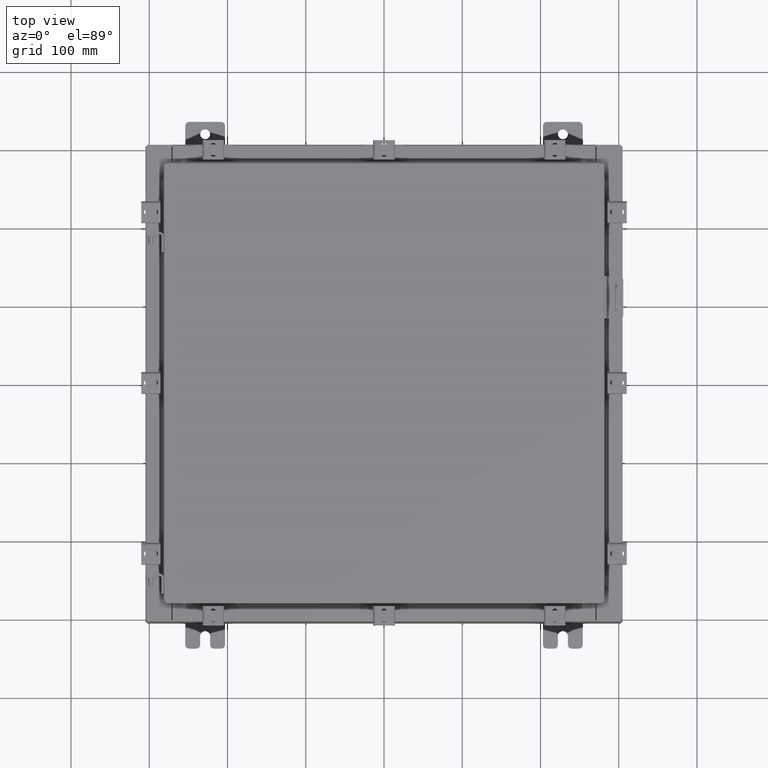
[diagram: clean part render]
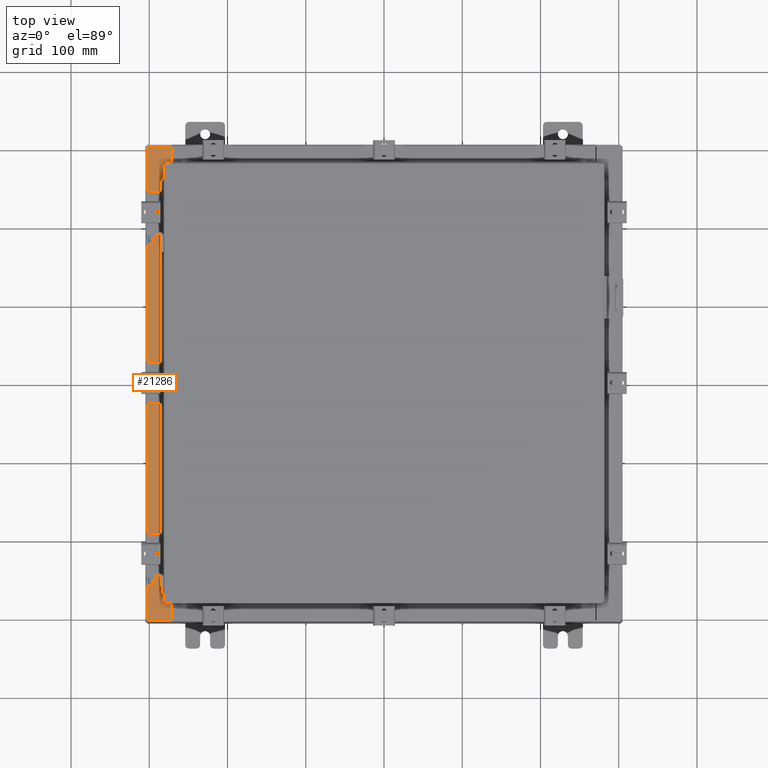
[diagram: same view with one face highlighted and labeled with its STEP entity id]
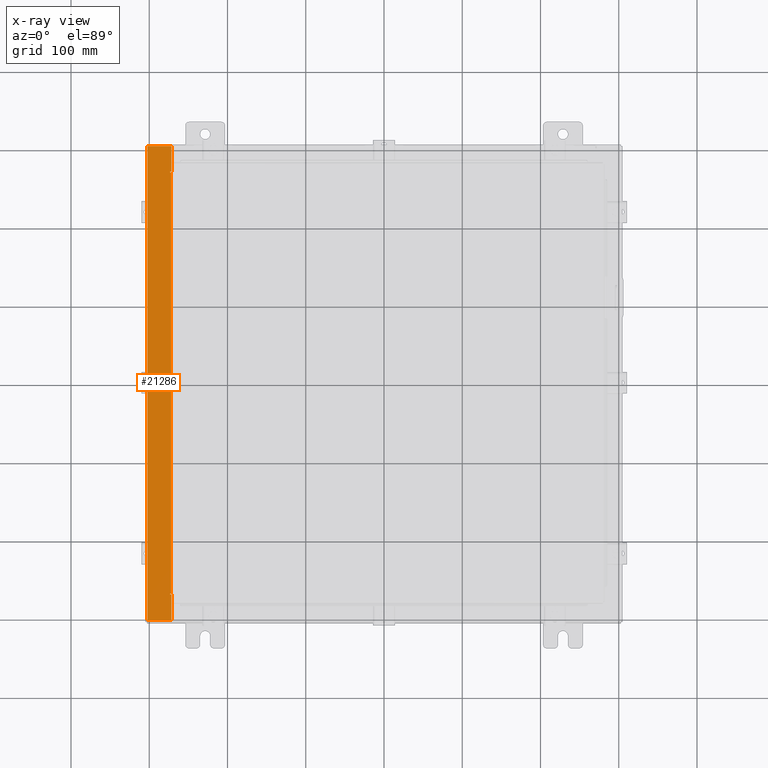
[diagram: x-ray of the same camera — body ghosted, the highlighted face saturated]
A machine part, top view. The second image highlights one B-rep face of the part: STEP entity #21286.
The next image is the same camera in x-ray: the body ghosted, the highlighted face saturated — about 0% of this face is hidden behind the body in this view.
In plain terms, the highlighted planar face has unit normal (0, 0, -1).
Its self-contained STEP definition (entity closure, byte-faithful):
#204 = ORIENTED_EDGE ( 'NONE', *, *, #18328, .F. ) ;
#241 = CARTESIAN_POINT ( 'NONE',  ( -10.75005000000002300, -10.63109999999999600, 5.925300000000008000 ) ) ;
#449 = VERTEX_POINT ( 'NONE', #14115 ) ;
#586 = LINE ( 'NONE', #5543, #5276 ) ;
#938 = CARTESIAN_POINT ( 'NONE',  ( -10.75005000000002300, 10.61242499999999800, 5.925300000000008000 ) ) ;
#1025 = EDGE_CURVE ( 'NONE', #449, #14493, #6634, .T. ) ;
#1284 = CARTESIAN_POINT ( 'NONE',  ( -10.69970000000002300, 10.63109999999999600, 5.925300000000008000 ) ) ;
#1315 = DIRECTION ( 'NONE',  ( 1.000000000000000000, 0.0000000000000000000, 0.0000000000000000000 ) ) ;
#1596 = ORIENTED_EDGE ( 'NONE', *, *, #2313, .T. ) ;
#1977 = EDGE_CURVE ( 'NONE', #6050, #22054, #5266, .T. ) ;
#2008 = AXIS2_PLACEMENT_3D ( 'NONE', #22132, #8294, #20490 ) ;
#2313 = EDGE_CURVE ( 'NONE', #13649, #8476, #5878, .T. ) ;
#2646 = CARTESIAN_POINT ( 'NONE',  ( -10.75005000000002300, 10.63109999999999600, 5.925300000000008000 ) ) ;
#2727 = DIRECTION ( 'NONE',  ( 1.000000000000000000, 0.0000000000000000000, 0.0000000000000000000 ) ) ;
#4092 = DIRECTION ( 'NONE',  ( -1.000000000000000000, 0.0000000000000000000, 0.0000000000000000000 ) ) ;
#4117 = ORIENTED_EDGE ( 'NONE', *, *, #16048, .F. ) ;
#4653 = ORIENTED_EDGE ( 'NONE', *, *, #18785, .T. ) ;
#4690 = VECTOR ( 'NONE', #20341, 39.37007874015748100 ) ;
#4700 = VECTOR ( 'NONE', #4092, 39.37007874015748100 ) ;
#4867 = ORIENTED_EDGE ( 'NONE', *, *, #15873, .F. ) ;
#5076 = ORIENTED_EDGE ( 'NONE', *, *, #1977, .T. ) ;
#5138 = ORIENTED_EDGE ( 'NONE', *, *, #10125, .T. ) ;
#5222 = CARTESIAN_POINT ( 'NONE',  ( -10.71270000000002300, 10.59374999999999800, 5.925300000000008000 ) ) ;
#5266 = LINE ( 'NONE', #22229, #4690 ) ;
#5276 = VECTOR ( 'NONE', #10785, 39.37007874015748100 ) ;
#5396 = VECTOR ( 'NONE', #13153, 39.37007874015748100 ) ;
#5542 = CARTESIAN_POINT ( 'NONE',  ( -11.91230000000002500, -11.92530000000000000, 5.925299999999999100 ) ) ;
#5543 = CARTESIAN_POINT ( 'NONE',  ( -10.75005000000002300, 10.59374999999999800, 5.925300000000008000 ) ) ;
#5825 = EDGE_CURVE ( 'NONE', #22288, #449, #586, .T. ) ;
#5878 = LINE ( 'NONE', #10395, #11116 ) ;
#5978 = VECTOR ( 'NONE', #19745, 39.37007874015748100 ) ;
#6050 = VERTEX_POINT ( 'NONE', #21736 ) ;
#6067 = VECTOR ( 'NONE', #22222, 39.37007874015748100 ) ;
#6499 = VERTEX_POINT ( 'NONE', #241 ) ;
#6634 = LINE ( 'NONE', #5222, #6067 ) ;
#6645 = CARTESIAN_POINT ( 'NONE',  ( -11.91230000000002300, 11.92529999999999800, 5.925299999999999100 ) ) ;
#6725 = VECTOR ( 'NONE', #15352, 39.37007874015748100 ) ;
#7272 = LINE ( 'NONE', #6645, #6725 ) ;
#7639 = ORIENTED_EDGE ( 'NONE', *, *, #5825, .F. ) ;
#7692 = CARTESIAN_POINT ( 'NONE',  ( -10.69970000000002300, -3.338884789195309000E-030, 5.925300000000008000 ) ) ;
#7861 = ORIENTED_EDGE ( 'NONE', *, *, #19582, .F. ) ;
#7959 = ORIENTED_EDGE ( 'NONE', *, *, #9702, .F. ) ;
#8117 = AXIS2_PLACEMENT_3D ( 'NONE', #938, #13189, #2727 ) ;
#8268 = CARTESIAN_POINT ( 'NONE',  ( -10.75005000000002300, -10.63109999999999600, 5.925300000000008000 ) ) ;
#8294 = DIRECTION ( 'NONE',  ( 7.132762385546384700E-015, 0.0000000000000000000, -1.000000000000000000 ) ) ;
#8476 = VERTEX_POINT ( 'NONE', #13658 ) ;
#9473 = DIRECTION ( 'NONE',  ( -3.120540565805877600E-031, 1.000000000000000000, -2.225807437035179500E-045 ) ) ;
#9483 = EDGE_CURVE ( 'NONE', #14493, #20748, #19289, .T. ) ;
#9631 = EDGE_LOOP ( 'NONE', ( #4867, #4653, #5076, #7959, #1596, #5138, #204, #4117, #15177, #13777, #7639, #7861 ) ) ;
#9702 = EDGE_CURVE ( 'NONE', #13649, #22054, #7272, .T. ) ;
#9734 = DIRECTION ( 'NONE',  ( -7.132762385546384700E-015, -0.0000000000000000000, 1.000000000000000000 ) ) ;
#10125 = EDGE_CURVE ( 'NONE', #8476, #19557, #13376, .T. ) ;
#10305 = FACE_OUTER_BOUND ( 'NONE', #9631, .T. ) ;
#10395 = CARTESIAN_POINT ( 'NONE',  ( -4.252457061909017700E-014, -11.92530000000000000, 5.925300000000084400 ) ) ;
#10487 = DIRECTION ( 'NONE',  ( 1.000000000000000000, -4.379057701015053300E-047, 7.132762385546384700E-015 ) ) ;
#10785 = DIRECTION ( 'NONE',  ( 1.000000000000000000, 0.0000000000000000000, 0.0000000000000000000 ) ) ;
#11037 = AXIS2_PLACEMENT_3D ( 'NONE', #20137, #9734, #21873 ) ;
#11116 = VECTOR ( 'NONE', #10487, 39.37007874015748100 ) ;
#11823 = CIRCLE ( 'NONE', #11037, 0.01867499999999949400 ) ;
#12099 = CARTESIAN_POINT ( 'NONE',  ( -10.71270000000002300, -10.59374999999999800, 5.925300000000008000 ) ) ;
#12764 = VERTEX_POINT ( 'NONE', #1284 ) ;
#12769 = CARTESIAN_POINT ( 'NONE',  ( -10.69970000000002300, -3.338884789195309000E-030, 5.925300000000008000 ) ) ;
#13073 = CARTESIAN_POINT ( 'NONE',  ( -10.71270000000002300, -10.59374999999999800, 5.925300000000008000 ) ) ;
#13153 = DIRECTION ( 'NONE',  ( -1.000000000000000000, 0.0000000000000000000, 0.0000000000000000000 ) ) ;
#13189 = DIRECTION ( 'NONE',  ( -7.132762385546384700E-015, -0.0000000000000000000, 1.000000000000000000 ) ) ;
#13376 = LINE ( 'NONE', #7692, #22045 ) ;
#13649 = VERTEX_POINT ( 'NONE', #5542 ) ;
#13658 = CARTESIAN_POINT ( 'NONE',  ( -10.69970000000002300, -11.92530000000000000, 5.925300000000008000 ) ) ;
#13777 = ORIENTED_EDGE ( 'NONE', *, *, #1025, .F. ) ;
#14115 = CARTESIAN_POINT ( 'NONE',  ( -10.71270000000002300, 10.59374999999999800, 5.925300000000008000 ) ) ;
#14130 = CARTESIAN_POINT ( 'NONE',  ( -10.75005000000002300, 10.59374999999999800, 5.925300000000008000 ) ) ;
#14493 = VERTEX_POINT ( 'NONE', #12099 ) ;
#14520 = CARTESIAN_POINT ( 'NONE',  ( -10.69970000000002300, 10.63109999999999600, 5.925300000000008000 ) ) ;
#15177 = ORIENTED_EDGE ( 'NONE', *, *, #9483, .F. ) ;
#15280 = LINE ( 'NONE', #12769, #5978 ) ;
#15352 = DIRECTION ( 'NONE',  ( 9.163200904511462000E-017, 1.000000000000000000, 6.535893474290396800E-031 ) ) ;
#15873 = EDGE_CURVE ( 'NONE', #12764, #17476, #18061, .T. ) ;
#16048 = EDGE_CURVE ( 'NONE', #20748, #6499, #11823, .T. ) ;
#16591 = CARTESIAN_POINT ( 'NONE',  ( -10.69970000000002300, -10.63109999999999800, 5.925300000000008000 ) ) ;
#16594 = CIRCLE ( 'NONE', #8117, 0.01867499999999949400 ) ;
#16974 = PLANE ( 'NONE',  #2008 ) ;
#17193 = VECTOR ( 'NONE', #1315, 39.37007874015748100 ) ;
#17471 = CARTESIAN_POINT ( 'NONE',  ( -10.75005000000002300, -10.59374999999999800, 5.925300000000008000 ) ) ;
#17476 = VERTEX_POINT ( 'NONE', #2646 ) ;
#18061 = LINE ( 'NONE', #14520, #4700 ) ;
#18328 = EDGE_CURVE ( 'NONE', #6499, #19557, #21801, .T. ) ;
#18785 = EDGE_CURVE ( 'NONE', #12764, #6050, #15280, .T. ) ;
#19289 = LINE ( 'NONE', #13073, #5396 ) ;
#19557 = VERTEX_POINT ( 'NONE', #16591 ) ;
#19582 = EDGE_CURVE ( 'NONE', #17476, #22288, #16594, .T. ) ;
#19745 = DIRECTION ( 'NONE',  ( -3.120540565805877600E-031, 1.000000000000000000, -2.225807437035179500E-045 ) ) ;
#20137 = CARTESIAN_POINT ( 'NONE',  ( -10.75005000000002300, -10.61242499999999800, 5.925300000000008000 ) ) ;
#20341 = DIRECTION ( 'NONE',  ( -1.000000000000000000, -4.084933421431495300E-032, -7.132762385546384700E-015 ) ) ;
#20490 = DIRECTION ( 'NONE',  ( -1.000000000000000000, 0.0000000000000000000, -7.132762385546384700E-015 ) ) ;
#20535 = CARTESIAN_POINT ( 'NONE',  ( -11.91230000000002500, 11.92529999999999800, 5.925299999999999100 ) ) ;
#20748 = VERTEX_POINT ( 'NONE', #17471 ) ;
#21286 = ADVANCED_FACE ( 'NONE', ( #10305 ), #16974, .F. ) ;
#21736 = CARTESIAN_POINT ( 'NONE',  ( -10.69970000000002300, 11.92529999999999800, 5.925300000000008000 ) ) ;
#21801 = LINE ( 'NONE', #8268, #17193 ) ;
#21873 = DIRECTION ( 'NONE',  ( 1.000000000000000000, 0.0000000000000000000, 0.0000000000000000000 ) ) ;
#22045 = VECTOR ( 'NONE', #9473, 39.37007874015748100 ) ;
#22054 = VERTEX_POINT ( 'NONE', #20535 ) ;
#22132 = CARTESIAN_POINT ( 'NONE',  ( -4.252457061909017700E-014, 0.0000000000000000000, 5.925300000000084400 ) ) ;
#22222 = DIRECTION ( 'NONE',  ( -0.0000000000000000000, -1.000000000000000000, -0.0000000000000000000 ) ) ;
#22229 = CARTESIAN_POINT ( 'NONE',  ( -4.252457061909017700E-014, 11.92529999999999800, 5.925300000000084400 ) ) ;
#22288 = VERTEX_POINT ( 'NONE', #14130 ) ;